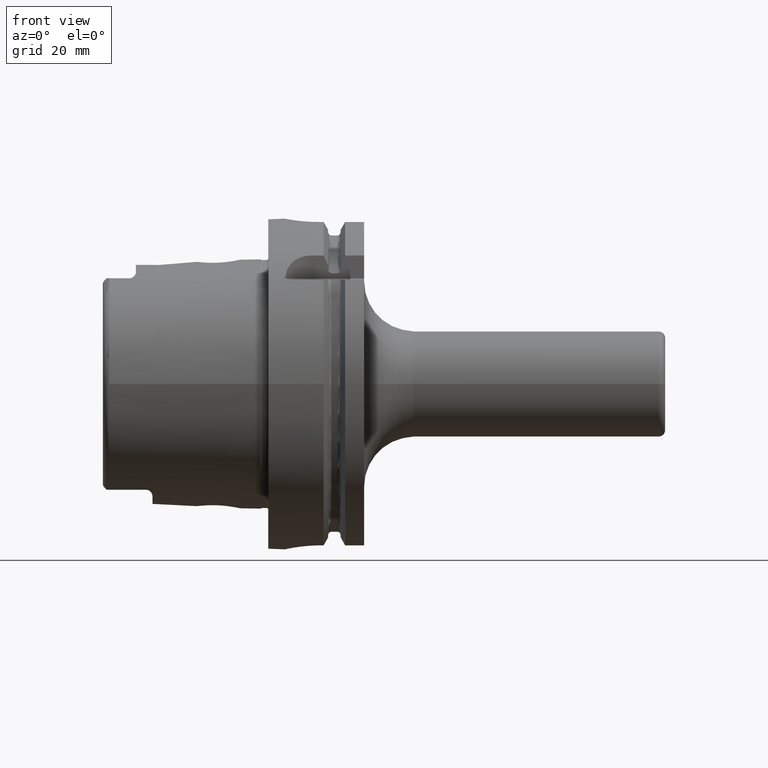
[diagram: clean part render]
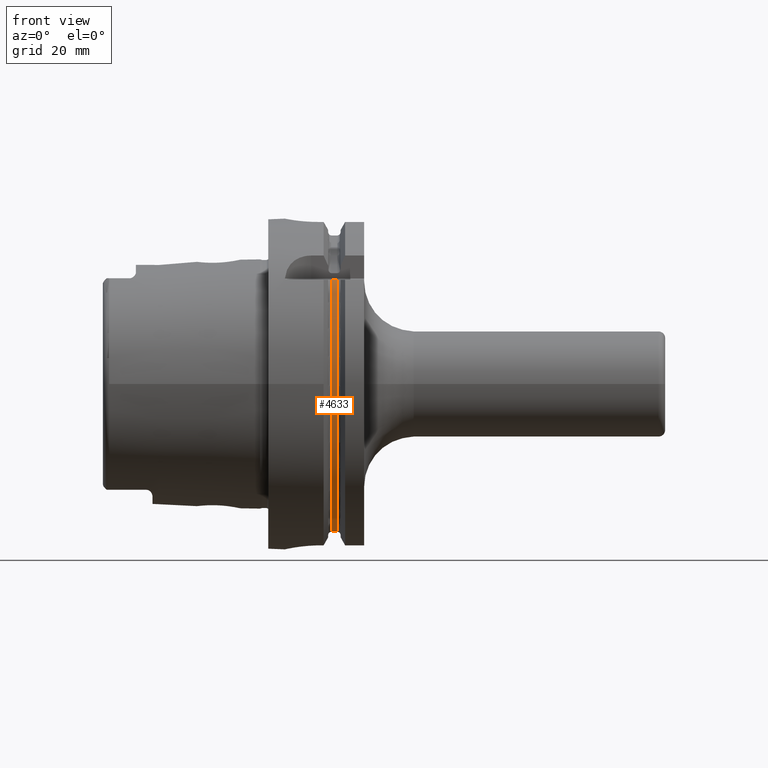
[diagram: same view with one face highlighted and labeled with its STEP entity id]
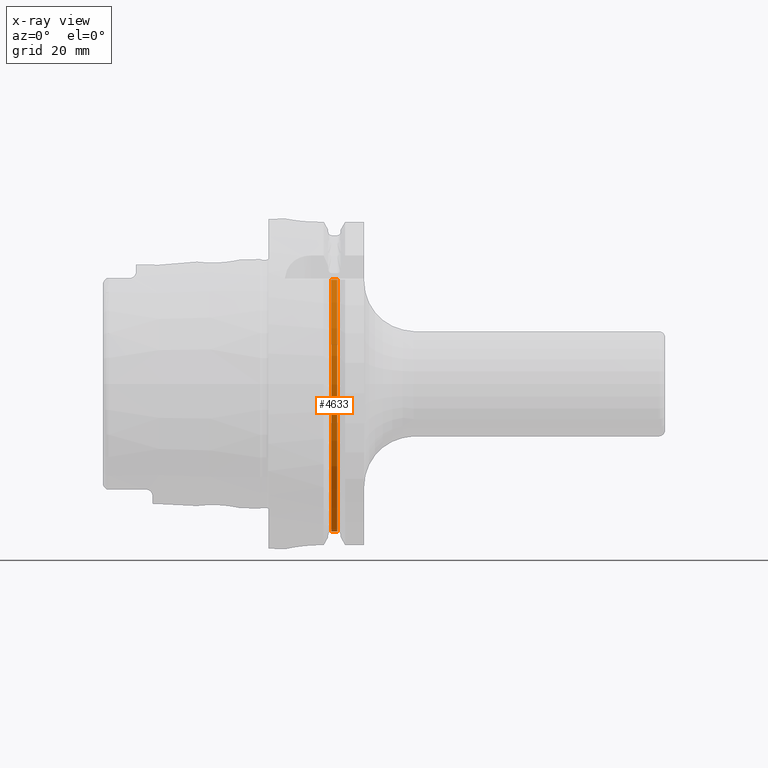
[diagram: x-ray of the same camera — body ghosted, the highlighted face saturated]
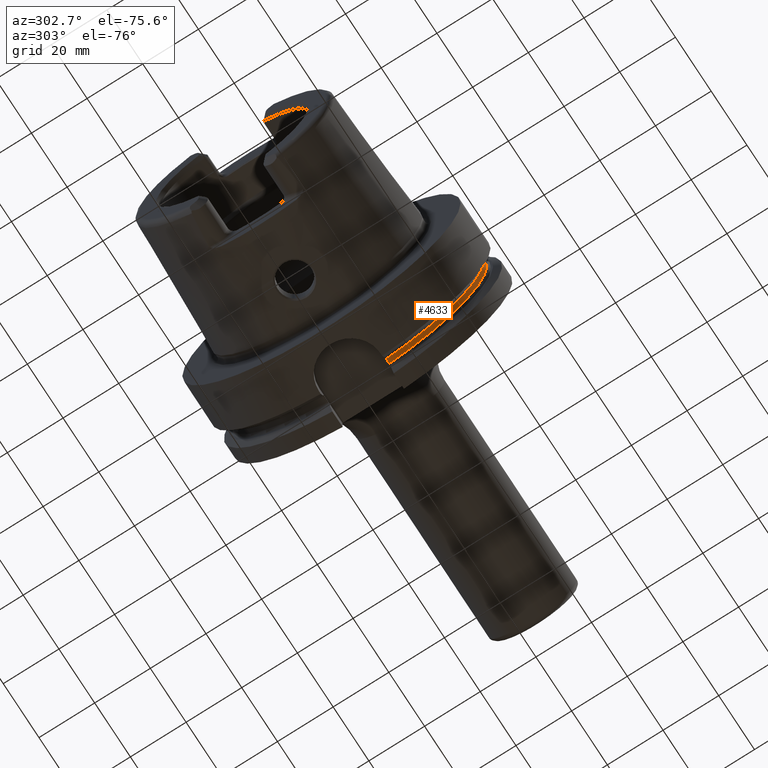
[diagram: same view with one face highlighted and labeled with its STEP entity id]
A machine part, front view. The second image highlights one B-rep face of the part: STEP entity #4633.
The next image is the same camera in x-ray: the body ghosted, the highlighted face saturated — about 0% of this face is hidden behind the body in this view.
A second angle (auxiliary view) of the same face is appended — the face is thin or edge-on in the first view.
In plain terms, the highlighted cylindrical surface (partial cylindrical patch) has radius 46 mm, axis along (1, 0, 0).
Its self-contained STEP definition (entity closure, byte-faithful):
#1405=CARTESIAN_POINT('',(1.9125E1,-3.352238058372E1,3.15E1));
#1431=CARTESIAN_POINT('',(1.9125E1,-1.1E1,-4.466542286825E1));
#1484=DIRECTION('',(1.E0,0.E0,0.E0));
#1485=VECTOR('',#1484,1.75E0);
#1486=CARTESIAN_POINT('',(1.9125E1,-3.352238058372E1,3.15E1));
#1487=LINE('',#1486,#1485);
#1488=DIRECTION('',(1.E0,0.E0,0.E0));
#1489=VECTOR('',#1488,1.75E0);
#1490=CARTESIAN_POINT('',(1.9125E1,-1.1E1,-4.466542286825E1));
#1491=LINE('',#1490,#1489);
#1492=CARTESIAN_POINT('',(1.9125E1,0.E0,0.E0));
#1493=DIRECTION('',(-1.E0,0.E0,0.E0));
#1494=DIRECTION('',(0.E0,-2.391304347826E-1,-9.709874536577E-1));
#1495=AXIS2_PLACEMENT_3D('',#1492,#1493,#1494);
#1579=CARTESIAN_POINT('',(2.0875E1,0.E0,0.E0));
#1580=DIRECTION('',(-1.E0,0.E0,0.E0));
#1581=DIRECTION('',(0.E0,-2.391304347826E-1,-9.709874536577E-1));
#1582=AXIS2_PLACEMENT_3D('',#1579,#1580,#1581);
#3019=VERTEX_POINT('',#1431);
#3022=CARTESIAN_POINT('',(2.0875E1,-1.1E1,-4.466542286825E1));
#3023=VERTEX_POINT('',#3022);
#3072=VERTEX_POINT('',#1405);
#3074=CARTESIAN_POINT('',(2.0875E1,-3.352238058372E1,3.15E1));
#3075=VERTEX_POINT('',#3074);
#4621=CARTESIAN_POINT('',(1.615E1,0.E0,0.E0));
#4622=DIRECTION('',(1.E0,0.E0,0.E0));
#4623=DIRECTION('',(0.E0,-1.E0,0.E0));
#4624=AXIS2_PLACEMENT_3D('',#4621,#4622,#4623);
#4625=CYLINDRICAL_SURFACE('',#4624,4.6E1);
#4626=ORIENTED_EDGE('',*,*,#4272,.T.);
#4628=ORIENTED_EDGE('',*,*,#4627,.F.);
#4629=ORIENTED_EDGE('',*,*,#4454,.F.);
#4630=ORIENTED_EDGE('',*,*,#4585,.T.);
#4631=EDGE_LOOP('',(#4626,#4628,#4629,#4630));
#4632=FACE_OUTER_BOUND('',#4631,.F.);
#4633=ADVANCED_FACE('',(#4632),#4625,.T.);
#1496=CIRCLE('',#1495,4.6E1);
#1583=CIRCLE('',#1582,4.6E1);
#4272=EDGE_CURVE('',#3072,#3075,#1487,.T.);
#4454=EDGE_CURVE('',#3019,#3023,#1491,.T.);
#4585=EDGE_CURVE('',#3019,#3072,#1496,.T.);
#4627=EDGE_CURVE('',#3023,#3075,#1583,.T.);